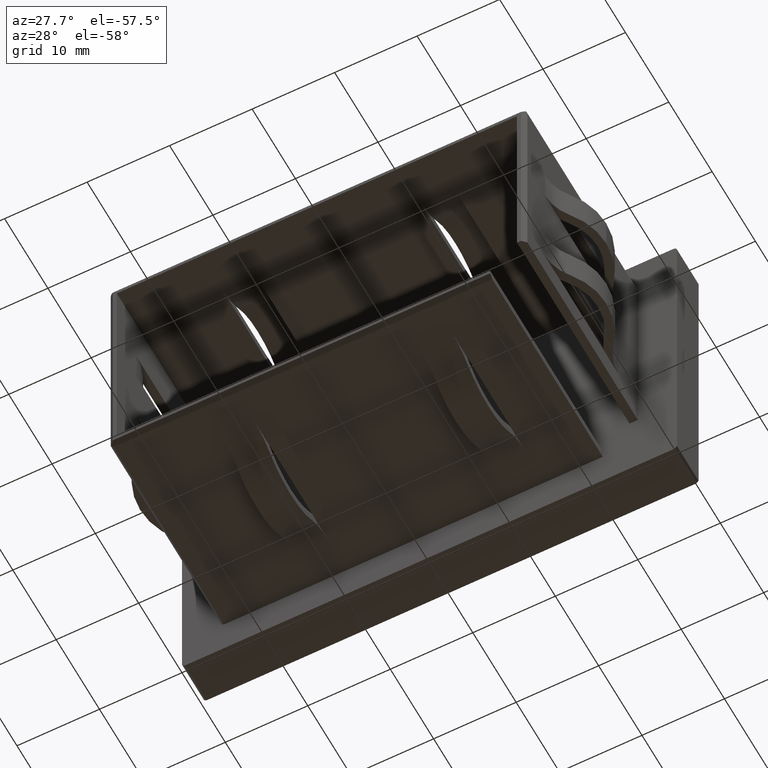
[diagram: clean part render]
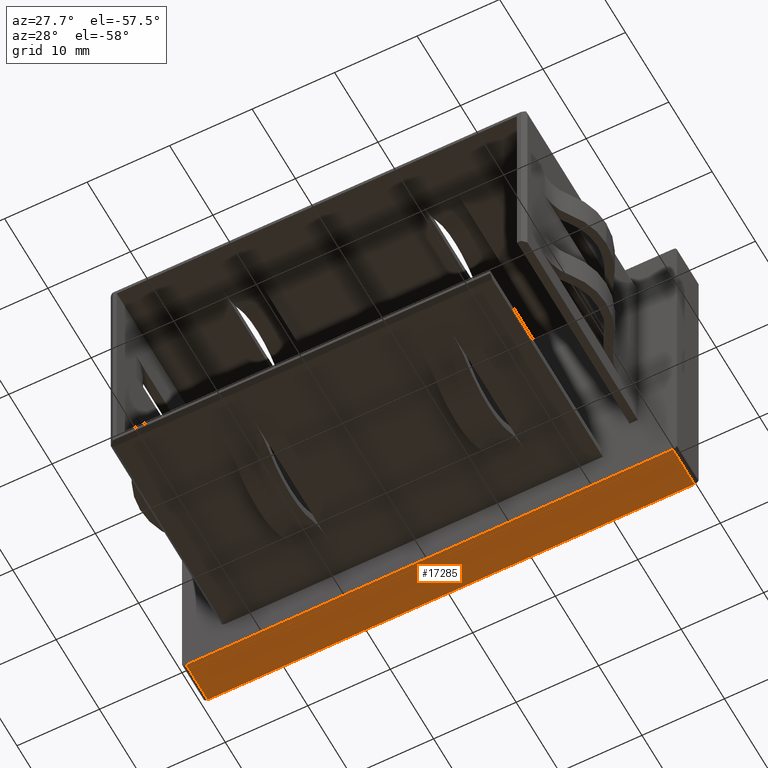
[diagram: same view with one face highlighted and labeled with its STEP entity id]
A machine part, auxiliary view. The second image highlights one B-rep face of the part: STEP entity #17285.
In plain terms, the highlighted planar face has unit normal (0, 0, 1).
Its self-contained STEP definition (entity closure, byte-faithful):
#28 = VERTEX_POINT ( 'NONE', #15464 ) ;
#1069 = CARTESIAN_POINT ( 'NONE',  ( 29.50000000000000400, 5.000000000000000000, -19.99999999999999600 ) ) ;
#1151 = DIRECTION ( 'NONE',  ( -1.000000000000000000, -0.0000000000000000000, -0.0000000000000000000 ) ) ;
#1379 = EDGE_CURVE ( 'NONE', #8086, #28, #15874, .T. ) ;
#1822 = DIRECTION ( 'NONE',  ( 0.0000000000000000000, -1.000000000000000000, 0.0000000000000000000 ) ) ;
#1913 = VECTOR ( 'NONE', #1151, 1000.000000000000000 ) ;
#1942 = CARTESIAN_POINT ( 'NONE',  ( 29.50000000000000400, 5.000000000000000000, -19.99999999999999600 ) ) ;
#1978 = DIRECTION ( 'NONE',  ( -1.000000000000000000, -0.0000000000000000000, -0.0000000000000000000 ) ) ;
#2015 = ORIENTED_EDGE ( 'NONE', *, *, #1379, .T. ) ;
#2245 = DIRECTION ( 'NONE',  ( 0.0000000000000000000, 0.0000000000000000000, 1.000000000000000000 ) ) ;
#2472 = CARTESIAN_POINT ( 'NONE',  ( -29.49999999999999600, 0.0000000000000000000, -19.99999999999999600 ) ) ;
#2779 = AXIS2_PLACEMENT_3D ( 'NONE', #13485, #2245, #7921 ) ;
#4280 = VECTOR ( 'NONE', #1822, 1000.000000000000000 ) ;
#4588 = VECTOR ( 'NONE', #18314, 1000.000000000000000 ) ;
#4972 = ORIENTED_EDGE ( 'NONE', *, *, #15330, .T. ) ;
#6209 = FACE_OUTER_BOUND ( 'NONE', #8956, .T. ) ;
#6429 = ORIENTED_EDGE ( 'NONE', *, *, #10804, .T. ) ;
#7135 = LINE ( 'NONE', #1942, #4280 ) ;
#7921 = DIRECTION ( 'NONE',  ( 1.000000000000000000, 0.0000000000000000000, -0.0000000000000000000 ) ) ;
#8086 = VERTEX_POINT ( 'NONE', #2472 ) ;
#8401 = LINE ( 'NONE', #11740, #13490 ) ;
#8501 = CARTESIAN_POINT ( 'NONE',  ( 29.50000000000000400, 0.0000000000000000000, -19.99999999999999600 ) ) ;
#8956 = EDGE_LOOP ( 'NONE', ( #10195, #4972, #6429, #2015 ) ) ;
#8998 = EDGE_CURVE ( 'NONE', #13798, #28, #15385, .T. ) ;
#10195 = ORIENTED_EDGE ( 'NONE', *, *, #8998, .F. ) ;
#10804 = EDGE_CURVE ( 'NONE', #12499, #8086, #8401, .T. ) ;
#10880 = PLANE ( 'NONE',  #2779 ) ;
#11740 = CARTESIAN_POINT ( 'NONE',  ( -29.99999999999999600, 0.0000000000000000000, -19.99999999999999600 ) ) ;
#12499 = VERTEX_POINT ( 'NONE', #8501 ) ;
#13485 = CARTESIAN_POINT ( 'NONE',  ( -29.99999999999999600, 5.000000000000000000, -19.99999999999999600 ) ) ;
#13490 = VECTOR ( 'NONE', #1978, 1000.000000000000000 ) ;
#13798 = VERTEX_POINT ( 'NONE', #1069 ) ;
#15330 = EDGE_CURVE ( 'NONE', #13798, #12499, #7135, .T. ) ;
#15385 = LINE ( 'NONE', #16725, #1913 ) ;
#15464 = CARTESIAN_POINT ( 'NONE',  ( -29.49999999999999600, 5.000000000000000000, -19.99999999999999600 ) ) ;
#15874 = LINE ( 'NONE', #16709, #4588 ) ;
#16709 = CARTESIAN_POINT ( 'NONE',  ( -29.49999999999999600, 5.000000000000000000, -19.99999999999999600 ) ) ;
#16725 = CARTESIAN_POINT ( 'NONE',  ( -29.99999999999999600, 5.000000000000000000, -19.99999999999999600 ) ) ;
#17285 = ADVANCED_FACE ( 'NONE', ( #6209 ), #10880, .F. ) ;
#18314 = DIRECTION ( 'NONE',  ( -0.0000000000000000000, 1.000000000000000000, -0.0000000000000000000 ) ) ;